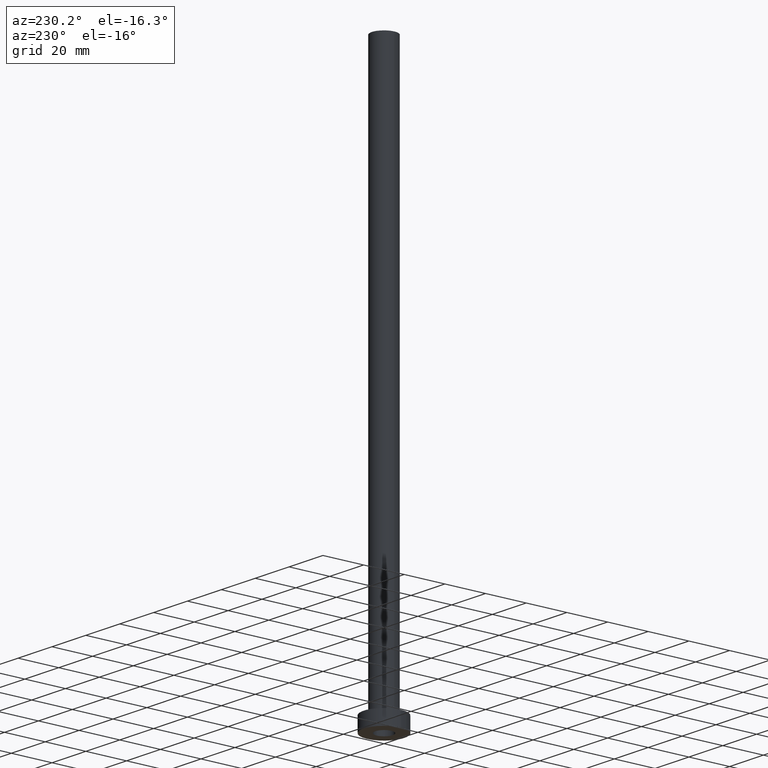
[diagram: clean part render]
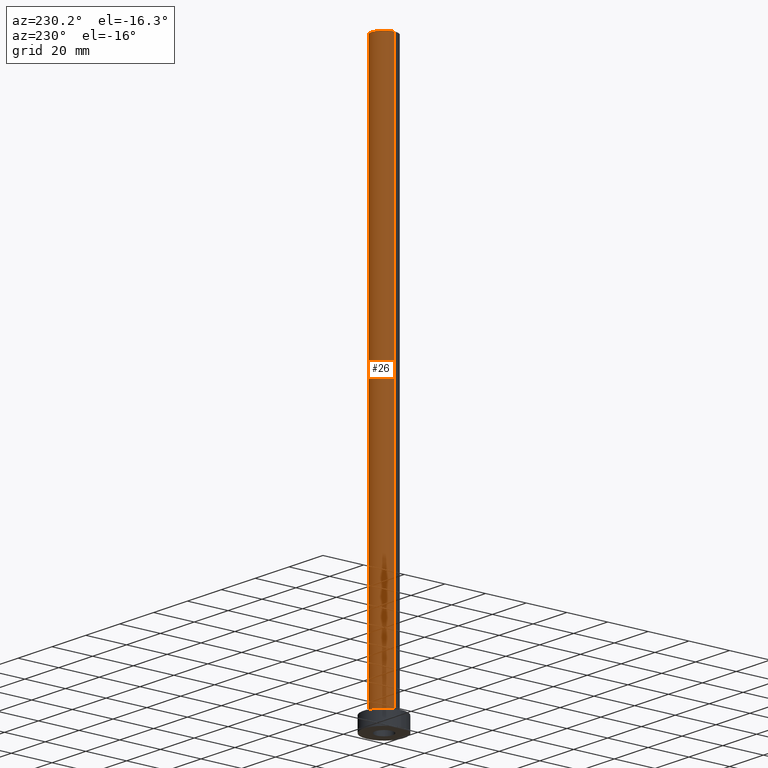
[diagram: same view with one face highlighted and labeled with its STEP entity id]
A machine part, auxiliary view. The second image highlights one B-rep face of the part: STEP entity #26.
In plain terms, the highlighted cylindrical surface (edge-blend (fillet) strip) has radius 6 mm, axis along (-0, -0, -1).
Its self-contained STEP definition (entity closure, byte-faithful):
#9 = CIRCLE ( 'NONE', #408, 6.000000000000000888 ) ;
#10 = CARTESIAN_POINT ( 'NONE',  ( 6.000000000000000888, 7.347880794884120722E-16, 275.0000000000000000 ) ) ;
#26 = ADVANCED_FACE ( 'NONE', ( #435 ), #46, .T. ) ;
#33 = ORIENTED_EDGE ( 'NONE', *, *, #458, .T. ) ;
#46 = CYLINDRICAL_SURFACE ( 'NONE', #97, 6.000000000000000888 ) ;
#64 = DIRECTION ( 'NONE',  ( 0.000000000000000000, 0.000000000000000000, 1.000000000000000000 ) ) ;
#85 = DIRECTION ( 'NONE',  ( 1.000000000000000000, 0.000000000000000000, 0.000000000000000000 ) ) ;
#89 = CARTESIAN_POINT ( 'NONE',  ( -6.000000000000000888, 0.000000000000000000, 7.699999999999985079 ) ) ;
#91 = VECTOR ( 'NONE', #433, 1000.000000000000000 ) ;
#97 = AXIS2_PLACEMENT_3D ( 'NONE', #182, #187, #292 ) ;
#98 = CARTESIAN_POINT ( 'NONE',  ( 0.000000000000000000, 0.000000000000000000, 275.0000000000000000 ) ) ;
#102 = ORIENTED_EDGE ( 'NONE', *, *, #443, .F. ) ;
#127 = VECTOR ( 'NONE', #259, 1000.000000000000000 ) ;
#140 = VERTEX_POINT ( 'NONE', #89 ) ;
#151 = CARTESIAN_POINT ( 'NONE',  ( -6.000000000000000888, 0.000000000000000000, 275.0000000000000000 ) ) ;
#182 = CARTESIAN_POINT ( 'NONE',  ( 0.000000000000000000, 0.000000000000000000, 275.0000000000000000 ) ) ;
#187 = DIRECTION ( 'NONE',  ( -0.000000000000000000, -0.000000000000000000, -1.000000000000000000 ) ) ;
#194 = EDGE_CURVE ( 'NONE', #448, #140, #450, .T. ) ;
#212 = ORIENTED_EDGE ( 'NONE', *, *, #194, .T. ) ;
#220 = CARTESIAN_POINT ( 'NONE',  ( -6.000000000000000888, 0.000000000000000000, 275.0000000000000000 ) ) ;
#254 = EDGE_CURVE ( 'NONE', #317, #460, #9, .T. ) ;
#257 = LINE ( 'NONE', #220, #91 ) ;
#259 = DIRECTION ( 'NONE',  ( -0.000000000000000000, -0.000000000000000000, -1.000000000000000000 ) ) ;
#292 = DIRECTION ( 'NONE',  ( -1.000000000000000000, 0.000000000000000000, 0.000000000000000000 ) ) ;
#317 = VERTEX_POINT ( 'NONE', #452 ) ;
#343 = DIRECTION ( 'NONE',  ( 0.000000000000000000, 0.000000000000000000, 1.000000000000000000 ) ) ;
#359 = EDGE_LOOP ( 'NONE', ( #427, #33, #212, #102 ) ) ;
#386 = CARTESIAN_POINT ( 'NONE',  ( 0.000000000000000000, 0.000000000000000000, 7.699999999999985079 ) ) ;
#390 = DIRECTION ( 'NONE',  ( 1.000000000000000000, 0.000000000000000000, 0.000000000000000000 ) ) ;
#406 = CARTESIAN_POINT ( 'NONE',  ( 6.000000000000000888, 7.347880794884120722E-16, 7.699999999999985079 ) ) ;
#408 = AXIS2_PLACEMENT_3D ( 'NONE', #98, #64, #390 ) ;
#410 = LINE ( 'NONE', #10, #127 ) ;
#412 = AXIS2_PLACEMENT_3D ( 'NONE', #386, #343, #85 ) ;
#427 = ORIENTED_EDGE ( 'NONE', *, *, #254, .F. ) ;
#433 = DIRECTION ( 'NONE',  ( -0.000000000000000000, -0.000000000000000000, -1.000000000000000000 ) ) ;
#435 = FACE_OUTER_BOUND ( 'NONE', #359, .T. ) ;
#443 = EDGE_CURVE ( 'NONE', #460, #140, #257, .T. ) ;
#448 = VERTEX_POINT ( 'NONE', #406 ) ;
#450 = CIRCLE ( 'NONE', #412, 6.000000000000000888 ) ;
#452 = CARTESIAN_POINT ( 'NONE',  ( 6.000000000000000888, 7.347880794884120722E-16, 275.0000000000000000 ) ) ;
#458 = EDGE_CURVE ( 'NONE', #317, #448, #410, .T. ) ;
#460 = VERTEX_POINT ( 'NONE', #151 ) ;